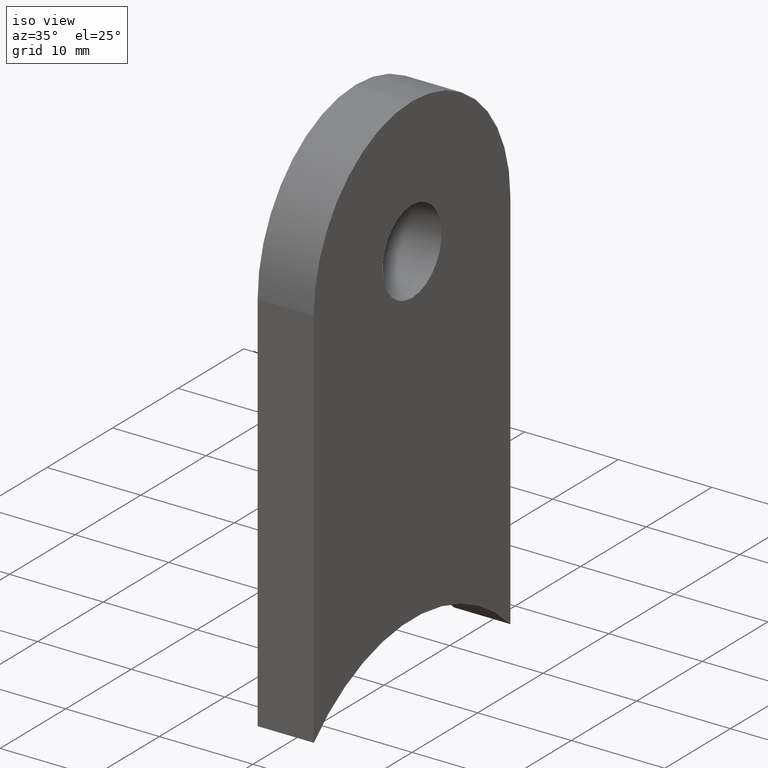
[diagram: clean part render]
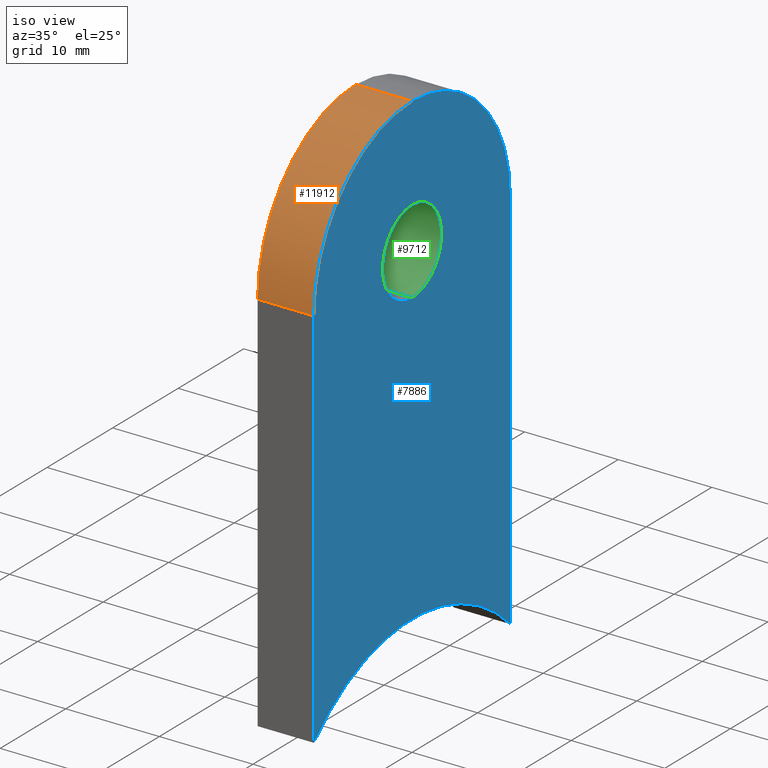
[diagram: same view with three faces highlighted in distinct colors, each labeled with its STEP entity id]
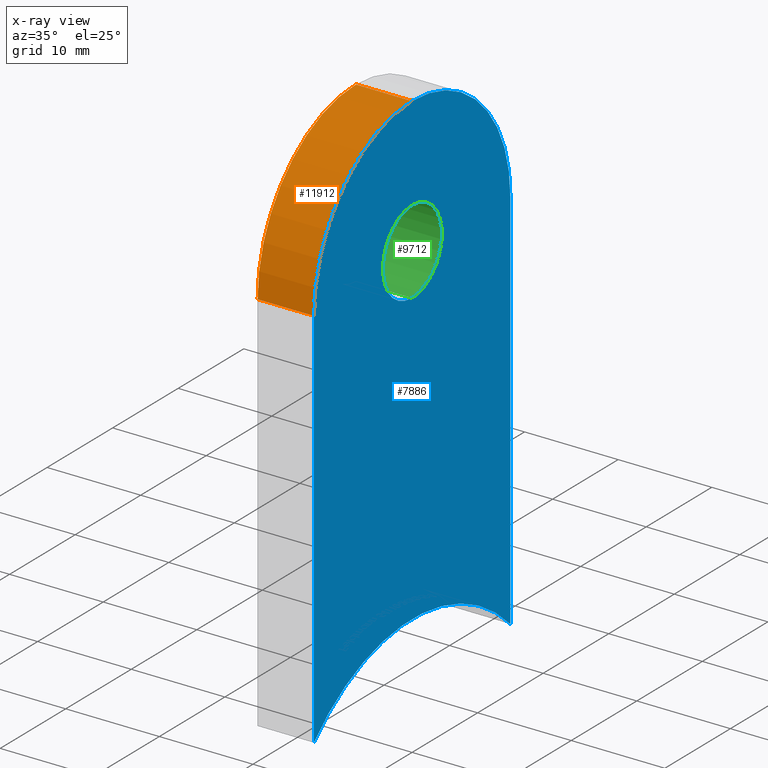
[diagram: x-ray of the same camera — body ghosted, the three highlighted faces saturated]
A machine part, iso view with three faces highlighted in distinct colors.
The next image is the same camera in x-ray (body ghosted, the three faces saturated) — at least one of them is partly hidden behind the body in this view.
Their STEP definitions:

[orange] entity #11912 — the highlighted cylindrical surface (partial cylindrical patch) has radius 15 mm, axis along (-1, -0, -0).
#307 = ORIENTED_EDGE ( 'NONE', *, *, #9119, .F. ) ;
#1289 = AXIS2_PLACEMENT_3D ( 'NONE', #4620, #1649, #11658 ) ;
#1538 = VERTEX_POINT ( 'NONE', #5665 ) ;
#1649 = DIRECTION ( 'NONE',  ( -1.000000000000000000, -0.0000000000000000000, -0.0000000000000000000 ) ) ;
#1834 = CARTESIAN_POINT ( 'NONE',  ( 3.000000000000000000, 0.0000000000000000000, 34.99999999999999300 ) ) ;
#1952 = EDGE_CURVE ( 'NONE', #1538, #13091, #8222, .T. ) ;
#1959 = ORIENTED_EDGE ( 'NONE', *, *, #5120, .F. ) ;
#1988 = CYLINDRICAL_SURFACE ( 'NONE', #1289, 15.00000000000000000 ) ;
#2043 = CIRCLE ( 'NONE', #9745, 15.00000000000000000 ) ;
#2341 = DIRECTION ( 'NONE',  ( -1.000000000000000000, -0.0000000000000000000, -0.0000000000000000000 ) ) ;
#2805 = DIRECTION ( 'NONE',  ( -1.000000000000000000, -0.0000000000000000000, 0.0000000000000000000 ) ) ;
#2977 = DIRECTION ( 'NONE',  ( -1.000000000000000000, -0.0000000000000000000, -0.0000000000000000000 ) ) ;
#3372 = EDGE_CURVE ( 'NONE', #5635, #1538, #2043, .T. ) ;
#3826 = CARTESIAN_POINT ( 'NONE',  ( -3.000000000000000000, 0.0000000000000000000, 49.99999999999999300 ) ) ;
#3966 = AXIS2_PLACEMENT_3D ( 'NONE', #4657, #5586, #6623 ) ;
#3979 = VERTEX_POINT ( 'NONE', #5703 ) ;
#4388 = LINE ( 'NONE', #10156, #8637 ) ;
#4620 = CARTESIAN_POINT ( 'NONE',  ( 3.000000000000000000, 0.0000000000000000000, 34.99999999999999300 ) ) ;
#4657 = CARTESIAN_POINT ( 'NONE',  ( -3.000000000000000000, 0.0000000000000000000, 34.99999999999999300 ) ) ;
#4800 = CARTESIAN_POINT ( 'NONE',  ( 3.000000000000000000, -14.99999999999999800, 34.99999999999999300 ) ) ;
#5120 = EDGE_CURVE ( 'NONE', #3979, #13091, #9026, .T. ) ;
#5554 = VECTOR ( 'NONE', #2341, 1000.000000000000000 ) ;
#5586 = DIRECTION ( 'NONE',  ( -1.000000000000000000, -0.0000000000000000000, 0.0000000000000000000 ) ) ;
#5635 = VERTEX_POINT ( 'NONE', #4800 ) ;
#5665 = CARTESIAN_POINT ( 'NONE',  ( 3.000000000000000000, 0.0000000000000000000, 49.99999999999999300 ) ) ;
#5703 = CARTESIAN_POINT ( 'NONE',  ( -3.000000000000000000, -14.99999999999999800, 34.99999999999999300 ) ) ;
#5785 = FACE_OUTER_BOUND ( 'NONE', #8316, .T. ) ;
#6472 = CARTESIAN_POINT ( 'NONE',  ( 3.000000000000000000, 0.0000000000000000000, 49.99999999999999300 ) ) ;
#6623 = DIRECTION ( 'NONE',  ( 0.0000000000000000000, 0.0000000000000000000, 1.000000000000000000 ) ) ;
#8222 = LINE ( 'NONE', #6472, #5554 ) ;
#8316 = EDGE_LOOP ( 'NONE', ( #13027, #12891, #1959, #307 ) ) ;
#8637 = VECTOR ( 'NONE', #2977, 1000.000000000000000 ) ;
#9026 = CIRCLE ( 'NONE', #3966, 15.00000000000000000 ) ;
#9119 = EDGE_CURVE ( 'NONE', #5635, #3979, #4388, .T. ) ;
#9745 = AXIS2_PLACEMENT_3D ( 'NONE', #1834, #2805, #13044 ) ;
#10156 = CARTESIAN_POINT ( 'NONE',  ( 3.000000000000000000, -14.99999999999999800, 34.99999999999999300 ) ) ;
#11658 = DIRECTION ( 'NONE',  ( 0.0000000000000000000, 0.0000000000000000000, 1.000000000000000000 ) ) ;
#11912 = ADVANCED_FACE ( 'NONE', ( #5785 ), #1988, .T. ) ;
#12891 = ORIENTED_EDGE ( 'NONE', *, *, #1952, .T. ) ;
#13027 = ORIENTED_EDGE ( 'NONE', *, *, #3372, .T. ) ;
#13044 = DIRECTION ( 'NONE',  ( 0.0000000000000000000, 0.0000000000000000000, 1.000000000000000000 ) ) ;
#13091 = VERTEX_POINT ( 'NONE', #3826 ) ;

[blue] entity #7886 — the highlighted planar face has unit normal (-1, -0, 0).
#9 = VECTOR ( 'NONE', #6212, 1000.000000000000000 ) ;
#113 = VERTEX_POINT ( 'NONE', #10261 ) ;
#392 = EDGE_CURVE ( 'NONE', #1538, #10160, #9845, .T. ) ;
#881 = VERTEX_POINT ( 'NONE', #11535 ) ;
#1432 = EDGE_CURVE ( 'NONE', #10160, #113, #12174, .T. ) ;
#1538 = VERTEX_POINT ( 'NONE', #5665 ) ;
#1724 = AXIS2_PLACEMENT_3D ( 'NONE', #13066, #7042, #11043 ) ;
#1795 = CARTESIAN_POINT ( 'NONE',  ( 3.000000000000000000, 0.0000000000000000000, 35.50000000000000000 ) ) ;
#1834 = CARTESIAN_POINT ( 'NONE',  ( 3.000000000000000000, 0.0000000000000000000, 34.99999999999999300 ) ) ;
#2043 = CIRCLE ( 'NONE', #9745, 15.00000000000000000 ) ;
#2333 = EDGE_LOOP ( 'NONE', ( #12084, #6100, #11412, #7677, #10853 ) ) ;
#2441 = AXIS2_PLACEMENT_3D ( 'NONE', #3733, #11762, #2569 ) ;
#2569 = DIRECTION ( 'NONE',  ( 0.0000000000000000000, 0.0000000000000000000, 1.000000000000000000 ) ) ;
#2805 = DIRECTION ( 'NONE',  ( -1.000000000000000000, -0.0000000000000000000, 0.0000000000000000000 ) ) ;
#2872 = CARTESIAN_POINT ( 'NONE',  ( 3.000000000000000000, 14.99999999999999800, 34.99999999999999300 ) ) ;
#2904 = LINE ( 'NONE', #9731, #11271 ) ;
#3372 = EDGE_CURVE ( 'NONE', #5635, #1538, #2043, .T. ) ;
#3537 = CIRCLE ( 'NONE', #11613, 4.500000000000000900 ) ;
#3733 = CARTESIAN_POINT ( 'NONE',  ( 3.000000000000000000, 0.0000000000000000000, 34.99999999999999300 ) ) ;
#3764 = FACE_BOUND ( 'NONE', #6788, .T. ) ;
#4158 = DIRECTION ( 'NONE',  ( 0.0000000000000000000, 0.0000000000000000000, -1.000000000000000000 ) ) ;
#4800 = CARTESIAN_POINT ( 'NONE',  ( 3.000000000000000000, -14.99999999999999800, 34.99999999999999300 ) ) ;
#5026 = CARTESIAN_POINT ( 'NONE',  ( 3.000000000000000000, 5.510910596163087600E-016, 40.00000000000000000 ) ) ;
#5055 = VERTEX_POINT ( 'NONE', #5674 ) ;
#5090 = DIRECTION ( 'NONE',  ( 0.0000000000000000000, 0.0000000000000000000, 1.000000000000000000 ) ) ;
#5314 = DIRECTION ( 'NONE',  ( 1.000000000000000000, 0.0000000000000000000, 0.0000000000000000000 ) ) ;
#5635 = VERTEX_POINT ( 'NONE', #4800 ) ;
#5665 = CARTESIAN_POINT ( 'NONE',  ( 3.000000000000000000, 0.0000000000000000000, 49.99999999999999300 ) ) ;
#5674 = CARTESIAN_POINT ( 'NONE',  ( 3.000000000000000000, -15.00000000000000000, -6.218678295957995600 ) ) ;
#5898 = ORIENTED_EDGE ( 'NONE', *, *, #9585, .F. ) ;
#6100 = ORIENTED_EDGE ( 'NONE', *, *, #11206, .F. ) ;
#6212 = DIRECTION ( 'NONE',  ( 0.0000000000000000000, 4.956352788505163400E-017, -1.000000000000000000 ) ) ;
#6500 = AXIS2_PLACEMENT_3D ( 'NONE', #8349, #5314, #4158 ) ;
#6788 = EDGE_LOOP ( 'NONE', ( #7103, #5898 ) ) ;
#7042 = DIRECTION ( 'NONE',  ( 1.000000000000000000, 0.0000000000000000000, 0.0000000000000000000 ) ) ;
#7103 = ORIENTED_EDGE ( 'NONE', *, *, #12953, .F. ) ;
#7677 = ORIENTED_EDGE ( 'NONE', *, *, #392, .F. ) ;
#7886 = ADVANCED_FACE ( 'NONE', ( #3764, #10883 ), #12219, .F. ) ;
#8349 = CARTESIAN_POINT ( 'NONE',  ( 3.000000000000000000, 0.0000000000000000000, -21.19999999999999900 ) ) ;
#8673 = DIRECTION ( 'NONE',  ( 0.0000000000000000000, 0.0000000000000000000, -1.000000000000000000 ) ) ;
#8787 = CARTESIAN_POINT ( 'NONE',  ( 3.000000000000000000, 14.99999999999999800, 34.99999999999999300 ) ) ;
#9585 = EDGE_CURVE ( 'NONE', #11593, #881, #10087, .T. ) ;
#9731 = CARTESIAN_POINT ( 'NONE',  ( 3.000000000000000000, -15.00000000000000000, -3.061616997868383000E-015 ) ) ;
#9745 = AXIS2_PLACEMENT_3D ( 'NONE', #1834, #2805, #13044 ) ;
#9845 = CIRCLE ( 'NONE', #2441, 15.00000000000000000 ) ;
#10087 = CIRCLE ( 'NONE', #1724, 4.500000000000000900 ) ;
#10160 = VERTEX_POINT ( 'NONE', #8787 ) ;
#10261 = CARTESIAN_POINT ( 'NONE',  ( 3.000000000000000000, 15.00000000000000000, -6.218678295957995600 ) ) ;
#10313 = CARTESIAN_POINT ( 'NONE',  ( 3.000000000000000000, 0.0000000000000000000, 34.99999999999999300 ) ) ;
#10685 = AXIS2_PLACEMENT_3D ( 'NONE', #10313, #11138, #5090 ) ;
#10853 = ORIENTED_EDGE ( 'NONE', *, *, #3372, .F. ) ;
#10883 = FACE_OUTER_BOUND ( 'NONE', #2333, .T. ) ;
#11043 = DIRECTION ( 'NONE',  ( 0.0000000000000000000, 0.0000000000000000000, -1.000000000000000000 ) ) ;
#11138 = DIRECTION ( 'NONE',  ( -1.000000000000000000, -0.0000000000000000000, 0.0000000000000000000 ) ) ;
#11206 = EDGE_CURVE ( 'NONE', #113, #5055, #12561, .T. ) ;
#11271 = VECTOR ( 'NONE', #11721, 1000.000000000000000 ) ;
#11412 = ORIENTED_EDGE ( 'NONE', *, *, #1432, .F. ) ;
#11535 = CARTESIAN_POINT ( 'NONE',  ( 3.000000000000000000, 0.0000000000000000000, 30.99999999999999600 ) ) ;
#11593 = VERTEX_POINT ( 'NONE', #5026 ) ;
#11613 = AXIS2_PLACEMENT_3D ( 'NONE', #1795, #11805, #8673 ) ;
#11721 = DIRECTION ( 'NONE',  ( 0.0000000000000000000, 4.956352788505163400E-017, 1.000000000000000000 ) ) ;
#11762 = DIRECTION ( 'NONE',  ( -1.000000000000000000, -0.0000000000000000000, 0.0000000000000000000 ) ) ;
#11805 = DIRECTION ( 'NONE',  ( 1.000000000000000000, 0.0000000000000000000, 0.0000000000000000000 ) ) ;
#12084 = ORIENTED_EDGE ( 'NONE', *, *, #12993, .F. ) ;
#12174 = LINE ( 'NONE', #2872, #9 ) ;
#12219 = PLANE ( 'NONE',  #10685 ) ;
#12561 = CIRCLE ( 'NONE', #6500, 21.19999999999999900 ) ;
#12953 = EDGE_CURVE ( 'NONE', #881, #11593, #3537, .T. ) ;
#12993 = EDGE_CURVE ( 'NONE', #5055, #5635, #2904, .T. ) ;
#13044 = DIRECTION ( 'NONE',  ( 0.0000000000000000000, 0.0000000000000000000, 1.000000000000000000 ) ) ;
#13066 = CARTESIAN_POINT ( 'NONE',  ( 3.000000000000000000, 0.0000000000000000000, 35.50000000000000000 ) ) ;

[green] entity #9712 — the highlighted cylindrical surface (partial cylindrical patch) has radius 4.5 mm, axis along (1, -0, -0).
#637 = DIRECTION ( 'NONE',  ( 1.000000000000000000, -0.0000000000000000000, -0.0000000000000000000 ) ) ;
#685 = CARTESIAN_POINT ( 'NONE',  ( -3.000000000000000000, 5.510910596163087600E-016, 40.00000000000000000 ) ) ;
#881 = VERTEX_POINT ( 'NONE', #11535 ) ;
#1356 = DIRECTION ( 'NONE',  ( 1.000000000000000000, -0.0000000000000000000, -0.0000000000000000000 ) ) ;
#1513 = DIRECTION ( 'NONE',  ( 0.0000000000000000000, 0.0000000000000000000, -1.000000000000000000 ) ) ;
#1795 = CARTESIAN_POINT ( 'NONE',  ( 3.000000000000000000, 0.0000000000000000000, 35.50000000000000000 ) ) ;
#2009 = FACE_OUTER_BOUND ( 'NONE', #4854, .T. ) ;
#2180 = VERTEX_POINT ( 'NONE', #685 ) ;
#2458 = AXIS2_PLACEMENT_3D ( 'NONE', #11529, #7575, #1513 ) ;
#2877 = VERTEX_POINT ( 'NONE', #7347 ) ;
#3018 = ORIENTED_EDGE ( 'NONE', *, *, #8181, .T. ) ;
#3020 = LINE ( 'NONE', #11622, #3792 ) ;
#3537 = CIRCLE ( 'NONE', #11613, 4.500000000000000900 ) ;
#3792 = VECTOR ( 'NONE', #637, 1000.000000000000000 ) ;
#3827 = CARTESIAN_POINT ( 'NONE',  ( -3.000000000000000000, 0.0000000000000000000, 30.99999999999999600 ) ) ;
#4761 = EDGE_CURVE ( 'NONE', #2877, #2180, #10627, .T. ) ;
#4854 = EDGE_LOOP ( 'NONE', ( #5979, #6717, #3018, #7315 ) ) ;
#5026 = CARTESIAN_POINT ( 'NONE',  ( 3.000000000000000000, 5.510910596163087600E-016, 40.00000000000000000 ) ) ;
#5535 = EDGE_CURVE ( 'NONE', #2180, #11593, #3020, .T. ) ;
#5979 = ORIENTED_EDGE ( 'NONE', *, *, #5535, .F. ) ;
#6717 = ORIENTED_EDGE ( 'NONE', *, *, #4761, .F. ) ;
#7315 = ORIENTED_EDGE ( 'NONE', *, *, #12953, .T. ) ;
#7347 = CARTESIAN_POINT ( 'NONE',  ( -3.000000000000000000, 0.0000000000000000000, 30.99999999999999600 ) ) ;
#7564 = VECTOR ( 'NONE', #11723, 1000.000000000000000 ) ;
#7575 = DIRECTION ( 'NONE',  ( 1.000000000000000000, 0.0000000000000000000, 0.0000000000000000000 ) ) ;
#8181 = EDGE_CURVE ( 'NONE', #2877, #881, #12132, .T. ) ;
#8673 = DIRECTION ( 'NONE',  ( 0.0000000000000000000, 0.0000000000000000000, -1.000000000000000000 ) ) ;
#9712 = ADVANCED_FACE ( 'NONE', ( #2009 ), #10244, .F. ) ;
#10244 = CYLINDRICAL_SURFACE ( 'NONE', #10542, 4.500000000000000900 ) ;
#10542 = AXIS2_PLACEMENT_3D ( 'NONE', #11548, #1356, #12439 ) ;
#10627 = CIRCLE ( 'NONE', #2458, 4.500000000000000900 ) ;
#11529 = CARTESIAN_POINT ( 'NONE',  ( -3.000000000000000000, 0.0000000000000000000, 35.50000000000000000 ) ) ;
#11535 = CARTESIAN_POINT ( 'NONE',  ( 3.000000000000000000, 0.0000000000000000000, 30.99999999999999600 ) ) ;
#11548 = CARTESIAN_POINT ( 'NONE',  ( -3.000000000000000000, 0.0000000000000000000, 35.50000000000000000 ) ) ;
#11593 = VERTEX_POINT ( 'NONE', #5026 ) ;
#11613 = AXIS2_PLACEMENT_3D ( 'NONE', #1795, #11805, #8673 ) ;
#11622 = CARTESIAN_POINT ( 'NONE',  ( -3.000000000000000000, 5.510910596163090500E-016, 40.00000000000000000 ) ) ;
#11723 = DIRECTION ( 'NONE',  ( 1.000000000000000000, -0.0000000000000000000, -0.0000000000000000000 ) ) ;
#11805 = DIRECTION ( 'NONE',  ( 1.000000000000000000, 0.0000000000000000000, 0.0000000000000000000 ) ) ;
#12132 = LINE ( 'NONE', #3827, #7564 ) ;
#12439 = DIRECTION ( 'NONE',  ( 0.0000000000000000000, 0.0000000000000000000, -1.000000000000000000 ) ) ;
#12953 = EDGE_CURVE ( 'NONE', #881, #11593, #3537, .T. ) ;